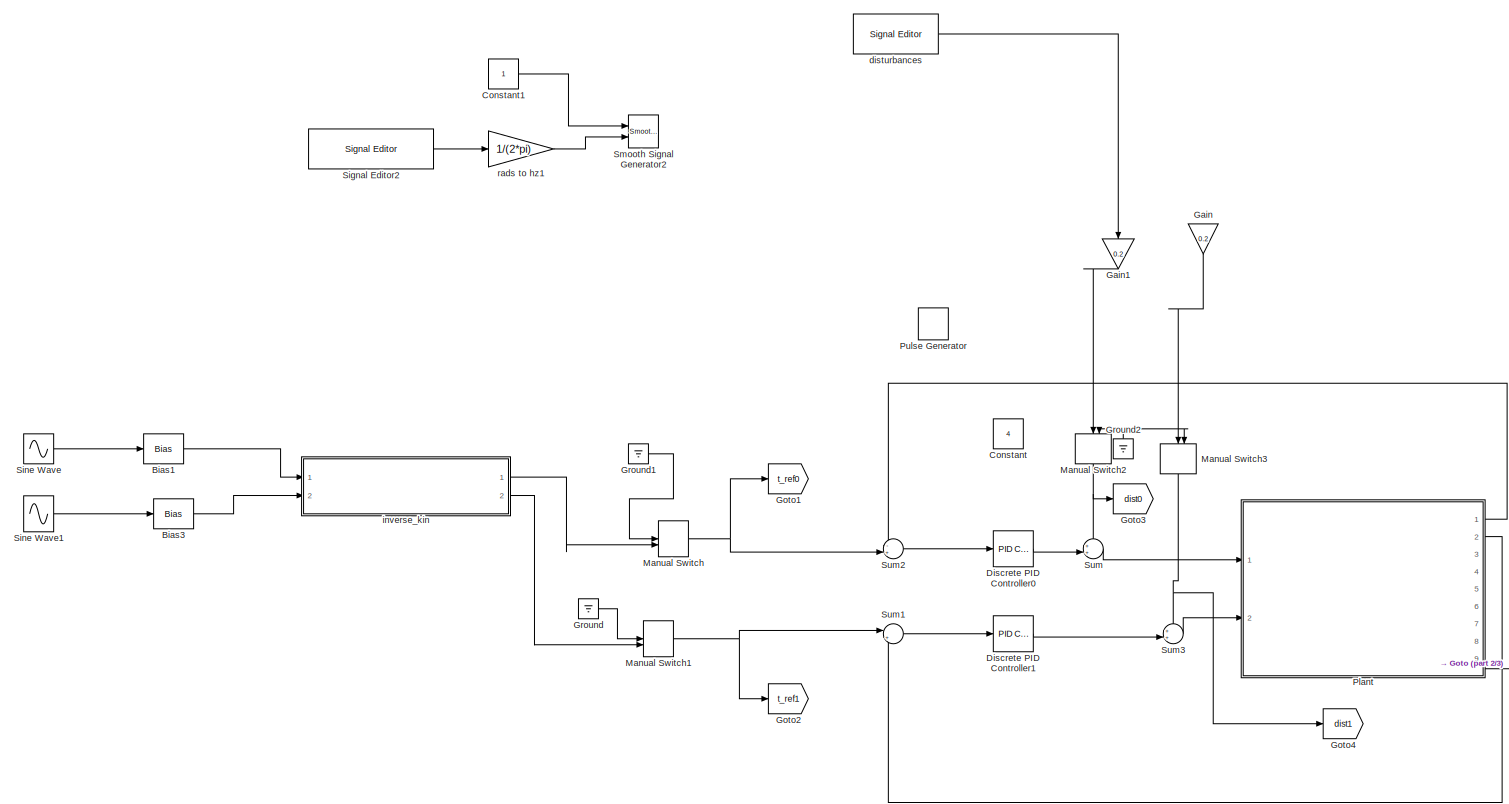
[diagram: root canvas - part 1/3, center side, full height]
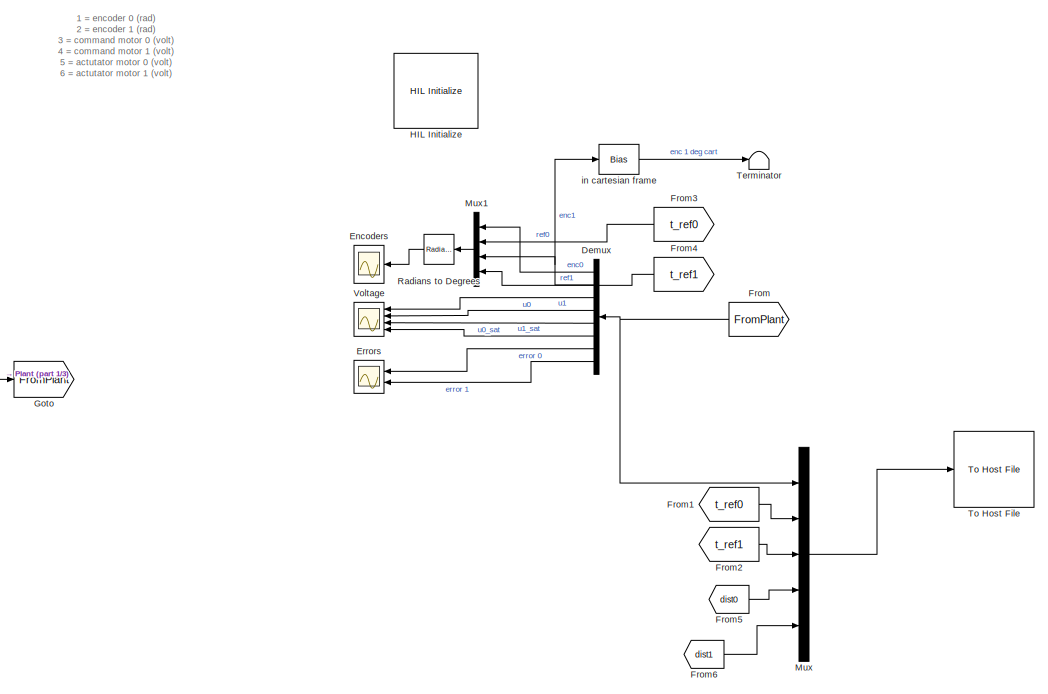
[diagram: root canvas - part 2/3, middle right region]
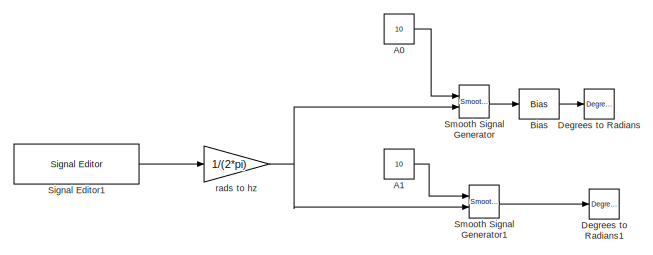
[diagram: root canvas - part 3/3, middle left region]
MODEL slx_808f192c8462
KIND model
CONFIG AbsTol = auto
CONFIG EnableMultiTasking = on
CONFIG FixedStep = 0.002
CONFIG MaxStep = auto
CONFIG MinStep = auto
CONFIG PostLoadFcn = qc_set_target_type(getConfigSet(bdroot, 'QUARC Default Target Configuration'));
CONFIG RelTol = 1e-3
CONFIG SampleTimeConstraint = Unconstrained
CONFIG Solver = FixedStepDiscrete
CONFIG SolverName = FixedStepDiscrete
CONFIG StartTime = 0.0
CONFIG StopTime = 10
BLOCK [Constant] A0
  Value = 10
BLOCK [Constant] A1
  Value = 10
BLOCK [Bias] Bias
  Bias = 7
  SaturateOnIntegerOverflow = off
BLOCK [Bias] Bias1
  Bias = 0.127
  SaturateOnIntegerOverflow = off
BLOCK [Bias] Bias3
  Bias = 0.127
  SaturateOnIntegerOverflow = off
BLOCK [Constant] Constant
  Value = 4
BLOCK [Constant] Constant1
BLOCK [Reference] Degrees to Radians  REF=simulink_extras/Transformations/Degrees to
Radians
  Ports = [1, 1]
  SourceBlock = simulink_extras/Transformations/Degrees to\nRadians
  SourceProductBaseCode = SL
  SourceProductName = Simulink
  SourceType = DegreesToRadians
BLOCK [Reference] Degrees to Radians1  REF=simulink_extras/Transformations/Degrees to
Radians
  Ports = [1, 1]
  SourceBlock = simulink_extras/Transformations/Degrees to\nRadians
  SourceProductBaseCode = SL
  SourceProductName = Simulink
  SourceType = DegreesToRadians
BLOCK [Demux] Demux
  DisplayOption = bar
  Outputs = 8
  Ports = [1, 8]
BLOCK [Reference] Discrete PID Controller0  REF=simulink/Continuous/PID Controller
  Ports = [1, 1]
  SourceBlock = simulink/Continuous/PID Controller
  SourceProductBaseCode = SL
  SourceProductName = Simulink
  SourceType = PID 1dof
BLOCK [Reference] Discrete PID Controller1  REF=simulink/Continuous/PID Controller
  Ports = [1, 1]
  SourceBlock = simulink/Continuous/PID Controller
  SourceProductBaseCode = SL
  SourceProductName = Simulink
  SourceType = PID 1dof
BLOCK [Scope] Encoders
  Floating = off
  NumInputPorts = 1
  Ports = [1]
  ScopeSpecificationString = Simulink.scopes.TimeScopeBlockCfg('CurrentConfiguration', extmgr.ConfigurationSet(extmgr.Configuration('Core','General UI',true),extmgr.Configuration('Core','Source UI',true),extmgr.Configuration('Sources','WiredSimulink',true),extmgr.Configuration('Visuals','Time Domain',true,'SerializedDisplays',{struct('MinYLimReal','-17.3584','MaxYLimReal','17.3584','YLabelReal','','MinYLimMag','0.00000','MaxY...<+1569ch>
BLOCK [Scope] Errors
  Floating = off
  NumInputPorts = 2
  Ports = [2]
  ScopeSpecificationString = Simulink.scopes.TimeScopeBlockCfg('CurrentConfiguration', extmgr.ConfigurationSet(extmgr.Configuration('Core','General UI',true),extmgr.Configuration('Core','Source UI',true),extmgr.Configuration('Sources','WiredSimulink',true,'DataLoggingVariableName','ScopeData2'),extmgr.Configuration('Visuals','Time Domain',true,'SerializedDisplays',{struct('MinYLimReal','-1.00000','MaxYLimReal','1.00000','YLab...<+1419ch>
BLOCK [From] From
  GotoTag = FromPlant
BLOCK [From] From1
  GotoTag = t_ref0
BLOCK [From] From2
  GotoTag = t_ref1
BLOCK [From] From3
  GotoTag = t_ref0
BLOCK [From] From4
  GotoTag = t_ref1
BLOCK [From] From5
  GotoTag = dist0
BLOCK [From] From6
  GotoTag = dist1
BLOCK [Gain] Gain
  Gain = 0.2
  OutDataTypeStr = Inherit: Inherit via internal rule
  ParamDataTypeStr = Inherit: Inherit via internal rule
  SaturateOnIntegerOverflow = off
BLOCK [Gain] Gain1
  Gain = 0.2
  OutDataTypeStr = Inherit: Inherit via internal rule
  ParamDataTypeStr = Inherit: Inherit via internal rule
  SaturateOnIntegerOverflow = off
BLOCK [Goto] Goto
  GotoTag = FromPlant
BLOCK [Goto] Goto1
  GotoTag = t_ref0
BLOCK [Goto] Goto2
  GotoTag = t_ref1
BLOCK [Goto] Goto3
  GotoTag = dist0
BLOCK [Goto] Goto4
  GotoTag = dist1
BLOCK [Ground] Ground
BLOCK [Ground] Ground1
BLOCK [Ground] Ground2
BLOCK [Reference] HIL Initialize  REF=quarc_library/Data Acquisition/Generic/Configuration/HIL Initialize
  AttributesFormatString = %<object_name> (%<board_type>-%<board_number>)
  Ports = []
  SourceBlock = quarc_library/Data Acquisition/Generic/Configuration/HIL Initialize
  SourceProductName = QUARC Targets
  SourceType = HIL Initialize
  UserDataPersistent = on
BLOCK [ManualSwitch] Manual Switch
  CurrentSetting = 0
BLOCK [ManualSwitch] Manual Switch1
  CurrentSetting = 0
BLOCK [ManualSwitch] Manual Switch2
BLOCK [ManualSwitch] Manual Switch3
BLOCK [Mux] Mux
  DisplayOption = bar
  Inputs = 5
  Ports = [5, 1]
BLOCK [Mux] Mux1
  DisplayOption = bar
  Ports = [4, 1]
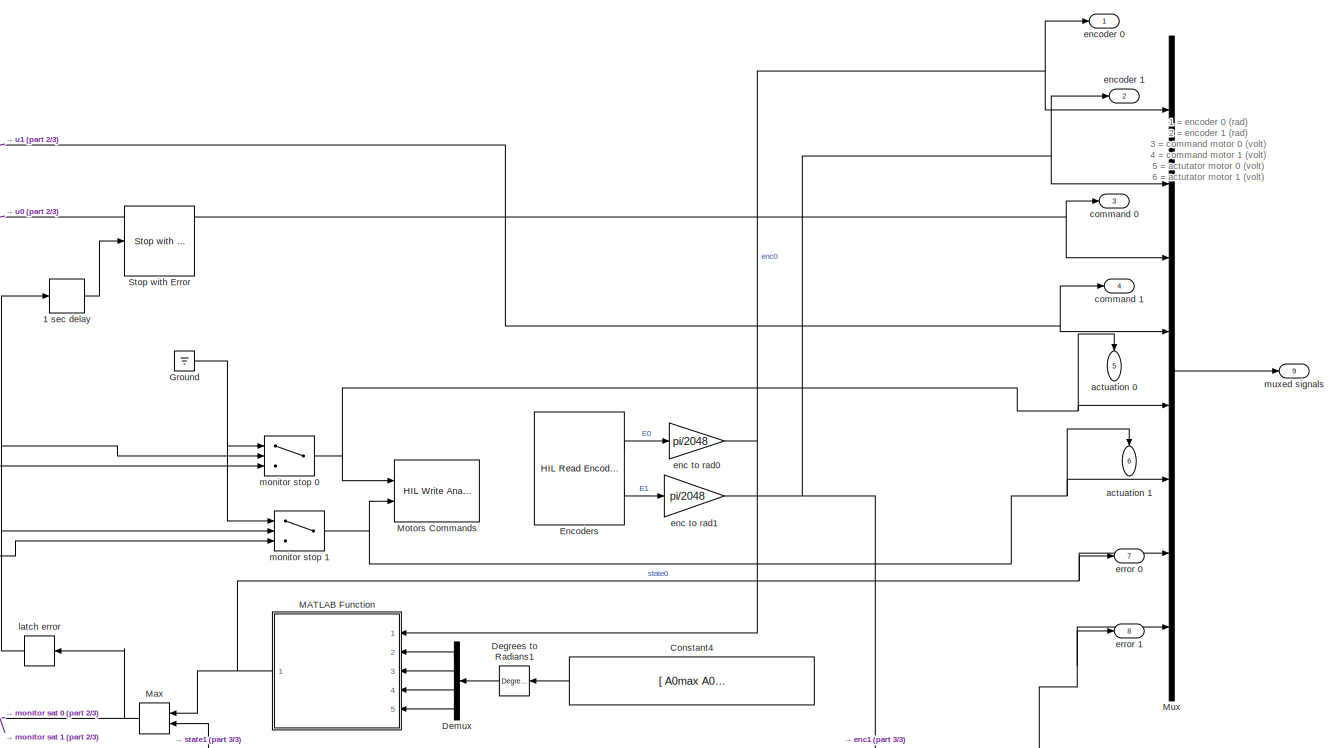
[diagram: Plant - part 1/3, center side, full height]
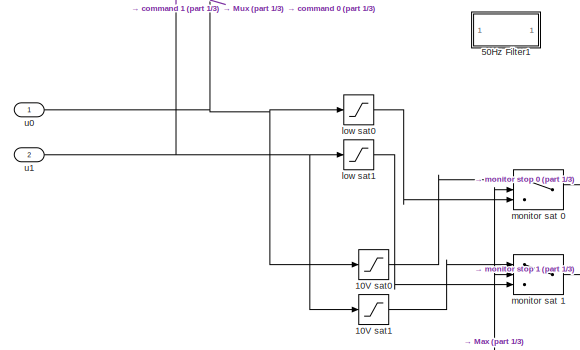
[diagram: Plant - part 2/3, middle left region]
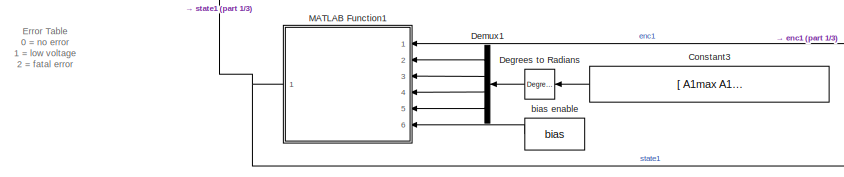
[diagram: Plant - part 3/3, bottom center region]
BLOCK [SubSystem] Plant
  Ports = [2, 9]
  RequestExecContextInheritance = off
BLOCK [Delay] Plant/1 sec delay
  DelayLength = 500
  InputPortMap = u0
  Ports = [1, 1]
BLOCK [Saturate] Plant/10V sat0
  InputPortMap = u0
  LowerLimit = -HighSat
  Ports = [1, 1]
  UpperLimit = HighSat
BLOCK [Saturate] Plant/10V sat1
  InputPortMap = u0
  LowerLimit = -HighSat
  Ports = [1, 1]
  UpperLimit = HighSat
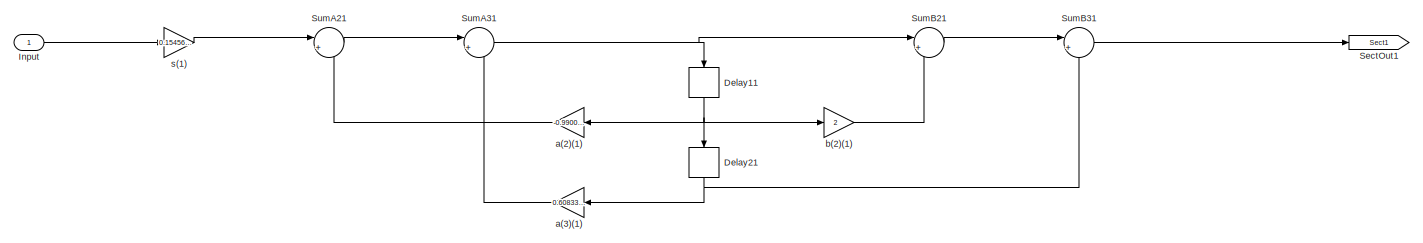
[diagram: Plant/50Hz Filter1 - part 1/3, left side, full height]
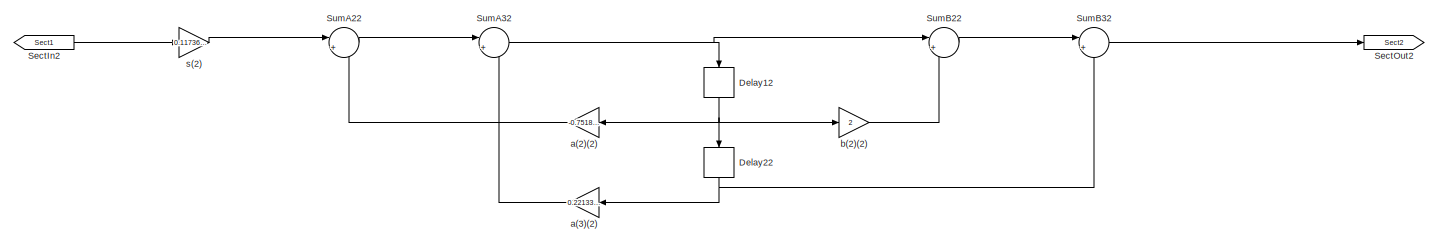
[diagram: Plant/50Hz Filter1 - part 2/3, center side, full height]
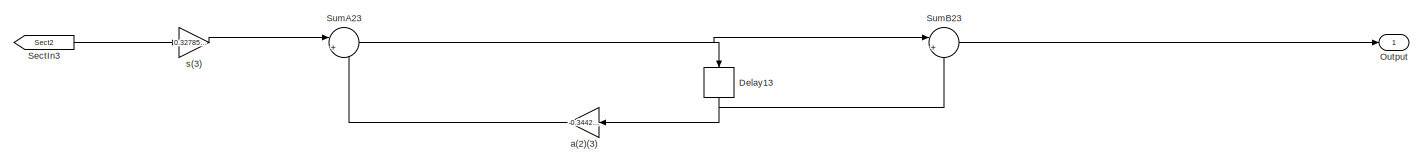
[diagram: Plant/50Hz Filter1 - part 3/3, middle right region]
BLOCK [SubSystem] Plant/50Hz Filter1
  Commented = on
  ErrorFcn = dspFilterRealizedInBasicElemsAlgLoopErrFcnCallback
  Ports = [1, 1]
  RequestExecContextInheritance = off
  Tag = FilterWizardSubSystem
  UserDataPersistent = on
BLOCK [Delay] Plant/50Hz Filter1/Delay11
  DelayLength = 1
  InitialCondition = 0
  InputPortMap = u0
  Ports = [1, 1]
BLOCK [Delay] Plant/50Hz Filter1/Delay12
  DelayLength = 1
  InitialCondition = 0
  InputPortMap = u0
  Ports = [1, 1]
BLOCK [Delay] Plant/50Hz Filter1/Delay13
  DelayLength = 1
  InitialCondition = 0
  InputPortMap = u0
  Ports = [1, 1]
BLOCK [Delay] Plant/50Hz Filter1/Delay21
  DelayLength = 1
  InitialCondition = 0
  InputPortMap = u0
  Ports = [1, 1]
BLOCK [Delay] Plant/50Hz Filter1/Delay22
  DelayLength = 1
  InitialCondition = 0
  InputPortMap = u0
  Ports = [1, 1]
BLOCK [Inport] Plant/50Hz Filter1/Input
  IconDisplay = Port number
BLOCK [Outport] Plant/50Hz Filter1/Output
  IconDisplay = Port number
BLOCK [From] Plant/50Hz Filter1/SectIn2
  GotoTag = Sect1
BLOCK [From] Plant/50Hz Filter1/SectIn3
  GotoTag = Sect2
BLOCK [Goto] Plant/50Hz Filter1/SectOut1
  GotoTag = Sect1
BLOCK [Goto] Plant/50Hz Filter1/SectOut2
  GotoTag = Sect2
BLOCK [Sum] Plant/50Hz Filter1/SumA21
  IconShape = round
  InputSameDT = off
  Inputs = |+-
  Ports = [2, 1]
  RndMeth = Nearest
BLOCK [Sum] Plant/50Hz Filter1/SumA22
  IconShape = round
  InputSameDT = off
  Inputs = |+-
  Ports = [2, 1]
  RndMeth = Nearest
BLOCK [Sum] Plant/50Hz Filter1/SumA23
  IconShape = round
  InputSameDT = off
  Inputs = |+-
  Ports = [2, 1]
  RndMeth = Nearest
BLOCK [Sum] Plant/50Hz Filter1/SumA31
  IconShape = round
  InputSameDT = off
  Inputs = |+-
  Ports = [2, 1]
  RndMeth = Nearest
BLOCK [Sum] Plant/50Hz Filter1/SumA32
  IconShape = round
  InputSameDT = off
  Inputs = |+-
  Ports = [2, 1]
  RndMeth = Nearest
BLOCK [Sum] Plant/50Hz Filter1/SumB21
  IconShape = round
  InputSameDT = off
  Inputs = |++
  Ports = [2, 1]
  RndMeth = Nearest
BLOCK [Sum] Plant/50Hz Filter1/SumB22
  IconShape = round
  InputSameDT = off
  Inputs = |++
  Ports = [2, 1]
  RndMeth = Nearest
BLOCK [Sum] Plant/50Hz Filter1/SumB23
  IconShape = round
  InputSameDT = off
  Inputs = |++
  Ports = [2, 1]
  RndMeth = Nearest
BLOCK [Sum] Plant/50Hz Filter1/SumB31
  IconShape = round
  InputSameDT = off
  Inputs = |++
  Ports = [2, 1]
  RndMeth = Nearest
BLOCK [Sum] Plant/50Hz Filter1/SumB32
  IconShape = round
  InputSameDT = off
  Inputs = |++
  Ports = [2, 1]
  RndMeth = Nearest
BLOCK [Gain] Plant/50Hz Filter1/a(2)(1)
  Gain = -0.990091882984657556
  ParamDataTypeStr = double
  RndMeth = Nearest
BLOCK [Gain] Plant/50Hz Filter1/a(2)(2)
  Gain = -0.751855293662188617
  ParamDataTypeStr = double
  RndMeth = Nearest
BLOCK [Gain] Plant/50Hz Filter1/a(2)(3)
  Gain = -0.344284801161231391
  ParamDataTypeStr = double
  RndMeth = Nearest
BLOCK [Gain] Plant/50Hz Filter1/a(3)(1)
  Gain = 0.60833338328188824
  ParamDataTypeStr = double
  RndMeth = Nearest
BLOCK [Gain] Plant/50Hz Filter1/a(3)(2)
  Gain = 0.221335099272643721
  ParamDataTypeStr = double
  RndMeth = Nearest
BLOCK [Gain] Plant/50Hz Filter1/b(2)(1)
  Gain = 2
  ParamDataTypeStr = double
  RndMeth = Nearest
BLOCK [Gain] Plant/50Hz Filter1/b(2)(2)
  Gain = 2
  ParamDataTypeStr = double
  RndMeth = Nearest
BLOCK [Gain] Plant/50Hz Filter1/s(1)
  Gain = 0.154560375074307699
  ParamDataTypeStr = double
  RndMeth = Nearest
BLOCK [Gain] Plant/50Hz Filter1/s(2)
  Gain = 0.117369951402613776
  ParamDataTypeStr = double
  RndMeth = Nearest
BLOCK [Gain] Plant/50Hz Filter1/s(3)
  Gain = 0.327857599419384249
  ParamDataTypeStr = double
  RndMeth = Nearest
BLOCK [Constant] Plant/Constant3
  Value = [  A1max A1min A1max+A1slack A1min-A1slack]
BLOCK [Constant] Plant/Constant4
  Value = [  A0max A0min A0max+A0slack A0min-A1slack]
BLOCK [Reference] Plant/Degrees to Radians  REF=simulink_extras/Transformations/Degrees to
Radians
  Ports = [1, 1]
  SourceBlock = simulink_extras/Transformations/Degrees to\nRadians
  SourceProductBaseCode = SL
  SourceProductName = Simulink
  SourceType = DegreesToRadians
BLOCK [Reference] Plant/Degrees to Radians1  REF=simulink_extras/Transformations/Degrees to
Radians
  Ports = [1, 1]
  SourceBlock = simulink_extras/Transformations/Degrees to\nRadians
  SourceProductBaseCode = SL
  SourceProductName = Simulink
  SourceType = DegreesToRadians
BLOCK [Demux] Plant/Demux
  DisplayOption = bar
  Ports = [1, 4]
BLOCK [Demux] Plant/Demux1
  DisplayOption = bar
  Ports = [1, 4]
BLOCK [Reference] Plant/Encoders  REF=quarc_library/Data Acquisition/Generic/Timebases/HIL Read Encoder
Timebase
  AttributesFormatString = (%<object_name>)
  Ports = [0, 2]
  SourceBlock = quarc_library/Data Acquisition/Generic/Timebases/HIL Read Encoder\nTimebase
  SourceProductName = QUARC Targets
  SourceType = HIL Read Encoder Timebase
  UserDataPersistent = on
BLOCK [Ground] Plant/Ground
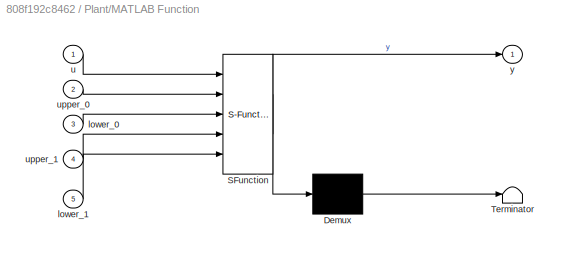
BLOCK [SubSystem] Plant/MATLAB Function
  ErrorFcn = Stateflow.Translate.translate
  PermitHierarchicalResolution = ExplicitOnly
  Ports = [5, 1]
  RequestExecContextInheritance = off
  SFBlockType = MATLAB Function
  TreatAsAtomicUnit = on
BLOCK [Demux] Plant/MATLAB Function/ Demux 
  Outputs = 1
  Ports = [1, 1]
BLOCK [S-Function] Plant/MATLAB Function/ SFunction 
  EnableBusSupport = on
  FunctionName = sf_sfun
  PortCounts = [5 2]
  Ports = [5, 2]
  SFcnIsStateOwnerBlock = off
  SFunctionDeploymentMode = off
  Tag = Stateflow S-Function 2
BLOCK [Terminator] Plant/MATLAB Function/ Terminator 
BLOCK [Inport] Plant/MATLAB Function/lower_0
  IconDisplay = Port number
  Port = 3
BLOCK [Inport] Plant/MATLAB Function/lower_1
  IconDisplay = Port number
  Port = 5
BLOCK [Inport] Plant/MATLAB Function/u
  IconDisplay = Port number
BLOCK [Inport] Plant/MATLAB Function/upper_0
  IconDisplay = Port number
  Port = 2
BLOCK [Inport] Plant/MATLAB Function/upper_1
  IconDisplay = Port number
  Port = 4
BLOCK [Outport] Plant/MATLAB Function/y
  IconDisplay = Port number
  VectorParamsAs1DForOutWhenUnconnected = off
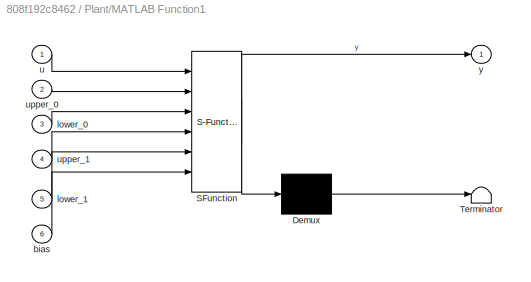
BLOCK [SubSystem] Plant/MATLAB Function1
  ErrorFcn = Stateflow.Translate.translate
  PermitHierarchicalResolution = ExplicitOnly
  Ports = [6, 1]
  RequestExecContextInheritance = off
  SFBlockType = MATLAB Function
  TreatAsAtomicUnit = on
BLOCK [Demux] Plant/MATLAB Function1/ Demux 
  Outputs = 1
  Ports = [1, 1]
BLOCK [S-Function] Plant/MATLAB Function1/ SFunction 
  EnableBusSupport = on
  FunctionName = sf_sfun
  PortCounts = [6 2]
  Ports = [6, 2]
  SFcnIsStateOwnerBlock = off
  SFunctionDeploymentMode = off
  Tag = Stateflow S-Function 1
BLOCK [Terminator] Plant/MATLAB Function1/ Terminator 
BLOCK [Inport] Plant/MATLAB Function1/bias
  IconDisplay = Port number
  Port = 6
BLOCK [Inport] Plant/MATLAB Function1/lower_0
  IconDisplay = Port number
  Port = 3
BLOCK [Inport] Plant/MATLAB Function1/lower_1
  IconDisplay = Port number
  Port = 5
BLOCK [Inport] Plant/MATLAB Function1/u
  IconDisplay = Port number
BLOCK [Inport] Plant/MATLAB Function1/upper_0
  IconDisplay = Port number
  Port = 2
BLOCK [Inport] Plant/MATLAB Function1/upper_1
  IconDisplay = Port number
  Port = 4
BLOCK [Outport] Plant/MATLAB Function1/y
  IconDisplay = Port number
  VectorParamsAs1DForOutWhenUnconnected = off
BLOCK [MinMax] Plant/Max
  Function = max
  InputSameDT = off
  Inputs = 2
  Ports = [2, 1]
  SaturateOnIntegerOverflow = off
BLOCK [Reference] Plant/Motors Commands  REF=quarc_library/Data Acquisition/Generic/Immediate I//O/HIL Write Analog
  AttributesFormatString = (%<object_name>)
  Ports = [2]
  SourceBlock = quarc_library/Data Acquisition/Generic/Immediate I//O/HIL Write Analog
  SourceProductName = QUARC Targets
  SourceType = HIL Write Analog
  UserDataPersistent = on
BLOCK [Mux] Plant/Mux
  DisplayOption = bar
  Inputs = 8
  Ports = [8, 1]
BLOCK [Reference] Plant/Stop with Error  REF=quarc_library/Sinks/Error Handling/Stop with Error
  AttributesFormatString = "%<message>"
  Ports = [1]
  SourceBlock = quarc_library/Sinks/Error Handling/Stop with Error
  SourceProductName = QUARC Targets
  SourceType = Stop with Error
BLOCK [Outport] Plant/actuation 0
  IconDisplay = Port number
  Port = 5
  Unit = V
BLOCK [Outport] Plant/actuation 1
  IconDisplay = Port number
  Port = 6
  Unit = V
BLOCK [Constant] Plant/bias enable
  Value = bias
BLOCK [Outport] Plant/command 0
  IconDisplay = Port number
  Port = 3
  Unit = V
BLOCK [Outport] Plant/command 1
  IconDisplay = Port number
  Port = 4
  Unit = V
BLOCK [Gain] Plant/enc to rad0
  Gain = pi/2048
  OutDataTypeStr = Inherit: Inherit via internal rule
  ParamDataTypeStr = Inherit: Inherit via internal rule
  SaturateOnIntegerOverflow = off
BLOCK [Gain] Plant/enc to rad1
  Gain = pi/2048
  OutDataTypeStr = Inherit: Inherit via internal rule
  ParamDataTypeStr = Inherit: Inherit via internal rule
  SaturateOnIntegerOverflow = off
BLOCK [Outport] Plant/encoder 0
  IconDisplay = Port number
  Unit = rad
BLOCK [Outport] Plant/encoder 1
  IconDisplay = Port number
  Port = 2
  Unit = rad
BLOCK [Outport] Plant/error 0
  IconDisplay = Port number
  Port = 7
BLOCK [Outport] Plant/error 1
  IconDisplay = Port number
  Port = 8
BLOCK [Relay] Plant/latch error
  OffSwitchValue = -1
  OnSwitchValue = 2
BLOCK [Saturate] Plant/low sat0
  InputPortMap = u0
  LowerLimit = -LowSat
  Ports = [1, 1]
  UpperLimit = LowSat
BLOCK [Saturate] Plant/low sat1
  InputPortMap = u0
  LowerLimit = -LowSat
  Ports = [1, 1]
  UpperLimit = LowSat
BLOCK [Switch] Plant/monitor sat 0
  InputSameDT = off
  SaturateOnIntegerOverflow = off
  Threshold = 0.5
BLOCK [Switch] Plant/monitor sat 1 
  InputSameDT = off
  SaturateOnIntegerOverflow = off
  Threshold = 0.5
BLOCK [Switch] Plant/monitor stop 0
  InputSameDT = off
  SaturateOnIntegerOverflow = off
  Threshold = 1
BLOCK [Switch] Plant/monitor stop 1
  InputSameDT = off
  SaturateOnIntegerOverflow = off
  Threshold = 1
BLOCK [Outport] Plant/muxed signals
  IconDisplay = Port number
  Port = 9
BLOCK [Inport] Plant/u0
  IconDisplay = Port number
  Unit = V
BLOCK [Inport] Plant/u1
  IconDisplay = Port number
  Port = 2
  Unit = V
BLOCK [DiscretePulseGenerator] Pulse Generator
  Ports = [0, 1]
  PulseType = Time based
  PulseWidth = 4
BLOCK [Reference] Radians to Degrees  REF=simulink_extras/Transformations/Radians
to Degrees
  Ports = [1, 1]
  SourceBlock = simulink_extras/Transformations/Radians\nto Degrees
  SourceProductBaseCode = SL
  SourceProductName = Simulink
  SourceType = RadiansToDegrees
BLOCK [Reference] Signal Editor1  REF=SignalEditorBlockLib/Signal Editor
  Ports = [0, 1]
  SourceBlock = SignalEditorBlockLib/Signal Editor
  SourceProductBaseCode = SL
  SourceProductName = Simulink
  SourceType = SignalEditor
  UserDataPersistent = on
BLOCK [Reference] Signal Editor2  REF=SignalEditorBlockLib/Signal Editor
  Ports = [0, 1]
  SourceBlock = SignalEditorBlockLib/Signal Editor
  SourceProductBaseCode = SL
  SourceProductName = Simulink
  SourceType = SignalEditor
  UserDataPersistent = on
BLOCK [Sin] Sine Wave
  Amplitude = 0.03
  Frequency = 2
  Phase = pi/2
  Ports = [0, 1]
  SampleTime = 0
BLOCK [Sin] Sine Wave1
  Amplitude = 0.03
  Frequency = 2
  Ports = [0, 1]
  SampleTime = 0
BLOCK [Reference] Smooth Signal Generator  REF=quarc_library/Sources/Signals/Smooth Signal
Generator
  Ports = [2, 1]
  SourceBlock = quarc_library/Sources/Signals/Smooth Signal\nGenerator
  SourceProductName = QUARC Targets
  SourceType = Smooth Signal Generator
BLOCK [Reference] Smooth Signal Generator1  REF=quarc_library/Sources/Signals/Smooth Signal
Generator
  Ports = [2, 1]
  SourceBlock = quarc_library/Sources/Signals/Smooth Signal\nGenerator
  SourceProductName = QUARC Targets
  SourceType = Smooth Signal Generator
BLOCK [Reference] Smooth Signal Generator2  REF=quarc_library/Sources/Signals/Smooth Signal
Generator
  Ports = [2, 1]
  SourceBlock = quarc_library/Sources/Signals/Smooth Signal\nGenerator
  SourceProductName = QUARC Targets
  SourceType = Smooth Signal Generator
BLOCK [Sum] Sum
  IconShape = round
  InputSameDT = off
  Inputs = ++|
  OutDataTypeStr = Inherit: Inherit via internal rule
  Ports = [2, 1]
  SaturateOnIntegerOverflow = off
BLOCK [Sum] Sum1
  IconShape = round
  InputSameDT = off
  Inputs = |+-
  OutDataTypeStr = Inherit: Inherit via internal rule
  Ports = [2, 1]
  SaturateOnIntegerOverflow = off
BLOCK [Sum] Sum2
  IconShape = round
  InputSameDT = off
  Inputs = -+|
  OutDataTypeStr = Inherit: Inherit via internal rule
  Ports = [2, 1]
  SaturateOnIntegerOverflow = off
BLOCK [Sum] Sum3
  IconShape = round
  InputSameDT = off
  Inputs = ++|
  OutDataTypeStr = Inherit: Inherit via internal rule
  Ports = [2, 1]
  SaturateOnIntegerOverflow = off
BLOCK [Terminator] Terminator
BLOCK [Reference] To Host File  REF=quarc_library/Sinks/To Host/To Host File
  AttributesFormatString = %<final_file_name>
  Ports = [1]
  SourceBlock = quarc_library/Sinks/To Host/To Host File
  SourceProductName = QUARC Targets
  SourceType = To Host File
BLOCK [Scope] Voltage
  Floating = off
  NumInputPorts = 4
  Ports = [4]
  ScopeSpecificationString = Simulink.scopes.TimeScopeBlockCfg('CurrentConfiguration', extmgr.ConfigurationSet(extmgr.Configuration('Core','General UI',true),extmgr.Configuration('Core','Source UI',true),extmgr.Configuration('Sources','WiredSimulink',true,'DataLoggingVariableName','ScopeData1'),extmgr.Configuration('Visuals','Time Domain',true,'SerializedDisplays',{struct('MinYLimReal','-1.25296','MaxYLimReal','1.51655','YLab...<+1519ch>
BLOCK [Reference] disturbances  REF=SignalEditorBlockLib/Signal Editor
  Ports = [0, 1]
  SourceBlock = SignalEditorBlockLib/Signal Editor
  SourceProductBaseCode = SL
  SourceProductName = Simulink
  SourceType = SignalEditor
  UserDataPersistent = on
BLOCK [Bias] in cartesian frame
  Bias = 90
  SaturateOnIntegerOverflow = off
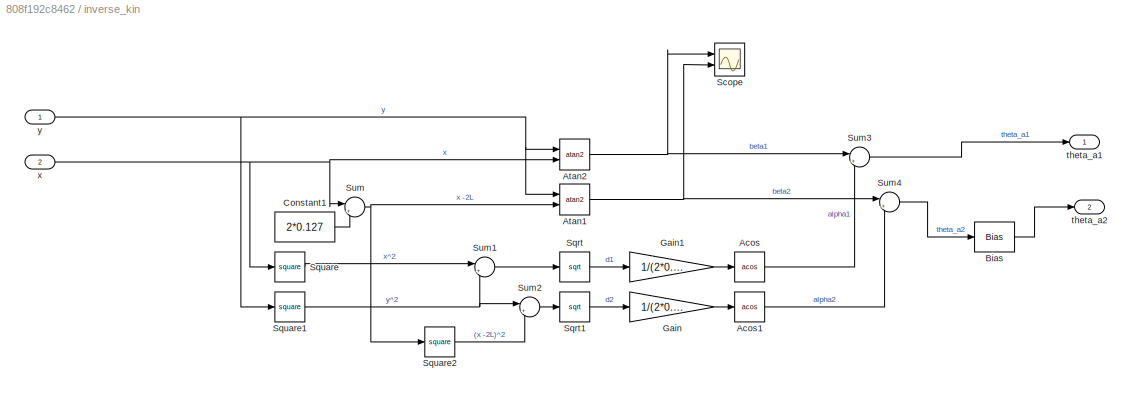
BLOCK [SubSystem] inverse_kin 
  Ports = [2, 2]
  RequestExecContextInheritance = off
BLOCK [Trigonometry] inverse_kin /Acos
  Operator = acos
  Ports = [1, 1]
BLOCK [Trigonometry] inverse_kin /Acos1
  Operator = acos
  Ports = [1, 1]
BLOCK [Trigonometry] inverse_kin /Atan1
  Operator = atan2
  Ports = [2, 1]
BLOCK [Trigonometry] inverse_kin /Atan2
  Operator = atan2
  Ports = [2, 1]
BLOCK [Bias] inverse_kin /Bias
  Bias = -pi/2
  SaturateOnIntegerOverflow = off
BLOCK [Constant] inverse_kin /Constant1
  Value = 2*0.127
BLOCK [Gain] inverse_kin /Gain
  Gain = 1/(2*0.127)
  OutDataTypeStr = Inherit: Inherit via internal rule
  ParamDataTypeStr = Inherit: Inherit via internal rule
  SaturateOnIntegerOverflow = off
BLOCK [Gain] inverse_kin /Gain1
  Gain = 1/(2*0.127)
  OutDataTypeStr = Inherit: Inherit via internal rule
  ParamDataTypeStr = Inherit: Inherit via internal rule
  SaturateOnIntegerOverflow = off
BLOCK [Scope] inverse_kin /Scope
  Floating = off
  NumInputPorts = 2
  Ports = [2]
  ScopeSpecificationString = Simulink.scopes.TimeScopeBlockCfg('CurrentConfiguration', extmgr.ConfigurationSet(extmgr.Configuration('Core','General UI',true),extmgr.Configuration('Core','Source UI',true),extmgr.Configuration('Sources','WiredSimulink',true,'DataLoggingVariableName','ScopeData1'),extmgr.Configuration('Visuals','Time Domain',true,'SerializedDisplays',{struct('MinYLimReal','0.37927','MaxYLimReal','2.76232','YLabe...<+1411ch>
BLOCK [Sqrt] inverse_kin /Sqrt
BLOCK [Sqrt] inverse_kin /Sqrt1
BLOCK [Math] inverse_kin /Square
  Operator = square
  Ports = [1, 1]
  SignedPower = off
BLOCK [Math] inverse_kin /Square1
  Operator = square
  Ports = [1, 1]
  SignedPower = off
BLOCK [Math] inverse_kin /Square2
  Operator = square
  Ports = [1, 1]
  SignedPower = off
BLOCK [Sum] inverse_kin /Sum
  IconShape = round
  InputSameDT = off
  Inputs = |+-
  OutDataTypeStr = Inherit: Inherit via internal rule
  Ports = [2, 1]
  SaturateOnIntegerOverflow = off
BLOCK [Sum] inverse_kin /Sum1
  IconShape = round
  InputSameDT = off
  Inputs = |++
  OutDataTypeStr = Inherit: Inherit via internal rule
  Ports = [2, 1]
  SaturateOnIntegerOverflow = off
BLOCK [Sum] inverse_kin /Sum2
  IconShape = round
  InputSameDT = off
  Inputs = |++
  OutDataTypeStr = Inherit: Inherit via internal rule
  Ports = [2, 1]
  SaturateOnIntegerOverflow = off
BLOCK [Sum] inverse_kin /Sum3
  IconShape = round
  InputSameDT = off
  Inputs = |+-
  OutDataTypeStr = Inherit: Inherit via internal rule
  Ports = [2, 1]
  SaturateOnIntegerOverflow = off
BLOCK [Sum] inverse_kin /Sum4
  IconShape = round
  InputSameDT = off
  Inputs = |+-
  OutDataTypeStr = Inherit: Inherit via internal rule
  Ports = [2, 1]
  SaturateOnIntegerOverflow = off
BLOCK [Outport] inverse_kin /theta_a1
  IconDisplay = Port number
BLOCK [Outport] inverse_kin /theta_a2
  IconDisplay = Port number
  Port = 2
BLOCK [Inport] inverse_kin /x
  IconDisplay = Port number
  Port = 2
BLOCK [Inport] inverse_kin /y
  IconDisplay = Port number
BLOCK [Gain] rads to hz
  Gain = 1/(2*pi)
  OutDataTypeStr = Inherit: Inherit via internal rule
  ParamDataTypeStr = Inherit: Inherit via internal rule
  SaturateOnIntegerOverflow = off
BLOCK [Gain] rads to hz1
  Gain = 1/(2*pi)
  OutDataTypeStr = Inherit: Inherit via internal rule
  ParamDataTypeStr = Inherit: Inherit via internal rule
  SaturateOnIntegerOverflow = off
ANNOTATION (root): 1 = encoder 0 (rad) 2 = encoder 1 (rad) 3 = command motor 0 (volt) 4 = command motor 1 (volt) 5 = actutator motor 0 (volt) 6 = actutator motor 1 (volt) 7 = error servo 0 (see error table) 8 = error servo 1
ANNOTATION Plant: Error Table 0 = no error 1 = low voltage 2 = fatal error
ANNOTATION Plant: 1 = encoder 0 (rad) 2 = encoder 1 (rad) 3 = command motor 0 (volt) 4 = command motor 1 (volt) 5 = actutator motor 0 (volt) 6 = actutator motor 1 (volt) 7 = error servo 0 (see error table) 8 = error servo 1 9 = muxed in one
LINE A0:1 -> Smooth Signal Generator:1
LINE A1:1 -> Smooth Signal Generator1:1
LINE Bias1:1 -> inverse_kin :1
LINE Bias3:1 -> inverse_kin :2
LINE Bias:1 -> Degrees to Radians:1
LINE Constant1:1 -> Smooth Signal Generator2:1
LINE Demux:1 -> Mux1:1
NET Demux:2 -> Mux1:3, in cartesian frame:1
LINE Demux:3 -> Voltage:1
LINE Demux:4 -> Voltage:2
LINE Demux:5 -> Voltage:3
LINE Demux:6 -> Voltage:4
LINE Demux:7 -> Errors:1
LINE Demux:8 -> Errors:2
LINE Discrete PID Controller0:1 -> Sum:2
LINE Discrete PID Controller1:1 -> Sum3:2
LINE From1:1 -> Mux:2
LINE From2:1 -> Mux:3
LINE From3:1 -> Mux1:2
LINE From4:1 -> Mux1:4
LINE From5:1 -> Mux:4
LINE From6:1 -> Mux:5
NET From:1 -> Demux:1, Mux:1
LINE Gain1:1 -> Manual Switch2:1
LINE Gain:1 -> Manual Switch3:1
LINE Ground1:1 -> Manual Switch:1
NET Ground2:1 -> Manual Switch2:2, Manual Switch3:2
LINE Ground:1 -> Manual Switch1:1
NET Manual Switch1:1 -> Goto2:1, Sum1:1
NET Manual Switch2:1 -> Goto3:1, Sum:1
NET Manual Switch3:1 -> Goto4:1, Sum3:1
NET Manual Switch:1 -> Goto1:1, Sum2:2
LINE Mux1:1 -> Radians to Degrees:1
LINE Mux:1 -> To Host File:1
LINE Plant/1 sec delay:1 -> Plant/Stop with Error:1
LINE Plant/10V sat0:1 -> Plant/monitor sat 0:1
LINE Plant/10V sat1:1 -> Plant/monitor sat 1 :1
NET Plant/50Hz Filter1/Delay11:1 -> Plant/50Hz Filter1/Delay21:1, Plant/50Hz Filter1/a(2)(1):1, Plant/50Hz Filter1/b(2)(1):1
NET Plant/50Hz Filter1/Delay12:1 -> Plant/50Hz Filter1/Delay22:1, Plant/50Hz Filter1/a(2)(2):1, Plant/50Hz Filter1/b(2)(2):1
NET Plant/50Hz Filter1/Delay13:1 -> Plant/50Hz Filter1/SumB23:2, Plant/50Hz Filter1/a(2)(3):1
NET Plant/50Hz Filter1/Delay21:1 -> Plant/50Hz Filter1/SumB31:2, Plant/50Hz Filter1/a(3)(1):1
NET Plant/50Hz Filter1/Delay22:1 -> Plant/50Hz Filter1/SumB32:2, Plant/50Hz Filter1/a(3)(2):1
LINE Plant/50Hz Filter1/Input:1 -> Plant/50Hz Filter1/s(1):1
LINE Plant/50Hz Filter1/SectIn2:1 -> Plant/50Hz Filter1/s(2):1
LINE Plant/50Hz Filter1/SectIn3:1 -> Plant/50Hz Filter1/s(3):1
LINE Plant/50Hz Filter1/SumA21:1 -> Plant/50Hz Filter1/SumA31:1
LINE Plant/50Hz Filter1/SumA22:1 -> Plant/50Hz Filter1/SumA32:1
NET Plant/50Hz Filter1/SumA23:1 -> Plant/50Hz Filter1/Delay13:1, Plant/50Hz Filter1/SumB23:1
NET Plant/50Hz Filter1/SumA31:1 -> Plant/50Hz Filter1/Delay11:1, Plant/50Hz Filter1/SumB21:1
NET Plant/50Hz Filter1/SumA32:1 -> Plant/50Hz Filter1/Delay12:1, Plant/50Hz Filter1/SumB22:1
LINE Plant/50Hz Filter1/SumB21:1 -> Plant/50Hz Filter1/SumB31:1
LINE Plant/50Hz Filter1/SumB22:1 -> Plant/50Hz Filter1/SumB32:1
LINE Plant/50Hz Filter1/SumB23:1 -> Plant/50Hz Filter1/Output:1
LINE Plant/50Hz Filter1/SumB31:1 -> Plant/50Hz Filter1/SectOut1:1
LINE Plant/50Hz Filter1/SumB32:1 -> Plant/50Hz Filter1/SectOut2:1
LINE Plant/50Hz Filter1/a(2)(1):1 -> Plant/50Hz Filter1/SumA21:2
LINE Plant/50Hz Filter1/a(2)(2):1 -> Plant/50Hz Filter1/SumA22:2
LINE Plant/50Hz Filter1/a(2)(3):1 -> Plant/50Hz Filter1/SumA23:2
LINE Plant/50Hz Filter1/a(3)(1):1 -> Plant/50Hz Filter1/SumA31:2
LINE Plant/50Hz Filter1/a(3)(2):1 -> Plant/50Hz Filter1/SumA32:2
LINE Plant/50Hz Filter1/b(2)(1):1 -> Plant/50Hz Filter1/SumB21:2
LINE Plant/50Hz Filter1/b(2)(2):1 -> Plant/50Hz Filter1/SumB22:2
LINE Plant/50Hz Filter1/s(1):1 -> Plant/50Hz Filter1/SumA21:1
LINE Plant/50Hz Filter1/s(2):1 -> Plant/50Hz Filter1/SumA22:1
LINE Plant/50Hz Filter1/s(3):1 -> Plant/50Hz Filter1/SumA23:1
LINE Plant/Constant3:1 -> Plant/Degrees to Radians:1
LINE Plant/Constant4:1 -> Plant/Degrees to Radians1:1
LINE Plant/Degrees to Radians1:1 -> Plant/Demux:1
LINE Plant/Degrees to Radians:1 -> Plant/Demux1:1
LINE Plant/Demux1:1 -> Plant/MATLAB Function1:2
LINE Plant/Demux1:2 -> Plant/MATLAB Function1:3
LINE Plant/Demux1:3 -> Plant/MATLAB Function1:4
LINE Plant/Demux1:4 -> Plant/MATLAB Function1:5
LINE Plant/Demux:1 -> Plant/MATLAB Function:2
LINE Plant/Demux:2 -> Plant/MATLAB Function:3
LINE Plant/Demux:3 -> Plant/MATLAB Function:4
LINE Plant/Demux:4 -> Plant/MATLAB Function:5
LINE Plant/Encoders:1 -> Plant/enc to rad0:1
LINE Plant/Encoders:2 -> Plant/enc to rad1:1
NET Plant/Ground:1 -> Plant/monitor stop 0:1, Plant/monitor stop 1:1
NET Plant/MATLAB Function1:1 -> Plant/Max:2, Plant/Mux:8, Plant/error 1:1
NET Plant/MATLAB Function:1 -> Plant/Max:1, Plant/Mux:7, Plant/error 0:1
NET Plant/Max:1 -> Plant/latch error:1, Plant/monitor sat 0:2, Plant/monitor sat 1 :2
LINE Plant/Mux:1 -> Plant/muxed signals:1
LINE Plant/bias enable:1 -> Plant/MATLAB Function1:6
NET Plant/enc to rad0:1 -> Plant/MATLAB Function:1, Plant/Mux:1, Plant/encoder 0:1
NET Plant/enc to rad1:1 -> Plant/MATLAB Function1:1, Plant/Mux:2, Plant/encoder 1:1
NET Plant/latch error:1 -> Plant/1 sec delay:1, Plant/monitor stop 0:2, Plant/monitor stop 1:2
LINE Plant/low sat0:1 -> Plant/monitor sat 0:3
LINE Plant/low sat1:1 -> Plant/monitor sat 1 :3
LINE Plant/monitor sat 0:1 -> Plant/monitor stop 0:3
LINE Plant/monitor sat 1 :1 -> Plant/monitor stop 1:3
NET Plant/monitor stop 0:1 -> Plant/Motors Commands:1, Plant/Mux:5, Plant/actuation 0:1
NET Plant/monitor stop 1:1 -> Plant/Motors Commands:2, Plant/Mux:6, Plant/actuation 1:1
NET Plant/u0:1 -> Plant/10V sat0:1, Plant/Mux:3, Plant/command 0:1, Plant/low sat0:1
NET Plant/u1:1 -> Plant/10V sat1:1, Plant/Mux:4, Plant/command 1:1, Plant/low sat1:1
LINE Plant:1 -> Sum2:1
LINE Plant:2 -> Sum1:2
LINE Plant:9 -> Goto:1
LINE Radians to Degrees:1 -> Encoders:1
LINE Signal Editor1:1 -> rads to hz:1
LINE Signal Editor2:1 -> rads to hz1:1
LINE Sine Wave1:1 -> Bias3:1
LINE Sine Wave:1 -> Bias1:1
LINE Smooth Signal Generator1:1 -> Degrees to Radians1:1
LINE Smooth Signal Generator:1 -> Bias:1
LINE Sum1:1 -> Discrete PID Controller1:1
LINE Sum2:1 -> Discrete PID Controller0:1
LINE Sum3:1 -> Plant:2
LINE Sum:1 -> Plant:1
LINE disturbances:1 -> Gain1:1
LINE in cartesian frame:1 -> Terminator:1
LINE inverse_kin /Acos1:1 -> inverse_kin /Sum4:2
LINE inverse_kin /Acos:1 -> inverse_kin /Sum3:2
NET inverse_kin /Atan1:1 -> inverse_kin /Scope:2, inverse_kin /Sum4:1
NET inverse_kin /Atan2:1 -> inverse_kin /Scope:1, inverse_kin /Sum3:1
LINE inverse_kin /Bias:1 -> inverse_kin /theta_a2:1
LINE inverse_kin /Constant1:1 -> inverse_kin /Sum:2
LINE inverse_kin /Gain1:1 -> inverse_kin /Acos:1
LINE inverse_kin /Gain:1 -> inverse_kin /Acos1:1
LINE inverse_kin /Sqrt1:1 -> inverse_kin /Gain:1
LINE inverse_kin /Sqrt:1 -> inverse_kin /Gain1:1
NET inverse_kin /Square1:1 -> inverse_kin /Sum1:2, inverse_kin /Sum2:1
LINE inverse_kin /Square2:1 -> inverse_kin /Sum2:2
LINE inverse_kin /Square:1 -> inverse_kin /Sum1:1
LINE inverse_kin /Sum1:1 -> inverse_kin /Sqrt:1
LINE inverse_kin /Sum2:1 -> inverse_kin /Sqrt1:1
LINE inverse_kin /Sum3:1 -> inverse_kin /theta_a1:1
LINE inverse_kin /Sum4:1 -> inverse_kin /Bias:1
NET inverse_kin /Sum:1 -> inverse_kin /Atan1:2, inverse_kin /Square2:1
NET inverse_kin /x:1 -> inverse_kin /Atan2:2, inverse_kin /Square:1, inverse_kin /Sum:1
NET inverse_kin /y:1 -> inverse_kin /Atan1:1, inverse_kin /Atan2:1, inverse_kin /Square1:1
LINE inverse_kin :1 -> Manual Switch:2
LINE inverse_kin :2 -> Manual Switch1:2
LINE rads to hz1:1 -> Smooth Signal Generator2:2
NET rads to hz:1 -> Smooth Signal Generator1:2, Smooth Signal Generator:2
note: NET lines group one-source signal fan-out (src -> all destinations, sorted); 1:1 wires keep LINE
CHART Plant/MATLAB Function1 states=1 transitions=1
  STATE_LABEL 'eML_blk_kernel()'
  STATE_LABEL 'SCRIPT:\nfunction y = test_bounds(u, upper_0, lower_0, upper_1, lower_1,bias)\n%#codegen\n%  0 = everything ok\n%  1 = low voltage\n%  2 = shutting down\nif bias\n     upper_0 = upper_0 + pi/2;\n     lower_0 = lower_0 + pi/2; \n     upper_1 = upper_1 + pi/2;\n     lower_1 = lower_1 + pi/2;\nend\n\nif u<upper_0 && u>lower_0\n    y = 0;\nelseif u<upper_1 && u>lower_1\n    y = 1;\nelse\n    y = 2;\nend\n'
CHART Plant/MATLAB Function states=1 transitions=1
  STATE_LABEL 'eML_blk_kernel()'
  STATE_LABEL 'SCRIPT:\nfunction y = test_bounds(u, upper_0, lower_0, upper_1, lower_1)\n%#codegen\n%  0 = everything ok\n%  1 = low voltage\n%  2 = shutting down\nif u<upper_0 && u>lower_0\n    y = 0;\nelseif u<upper_1 && u>lower_1\n    y = 1;\nelse\n    y = 2;\nend\n'
